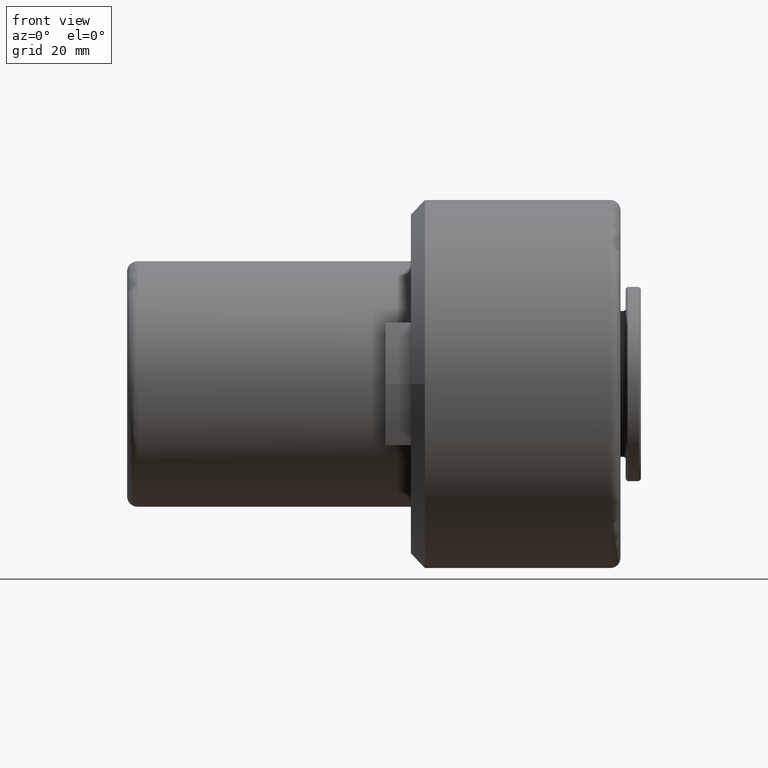
[diagram: clean part render]
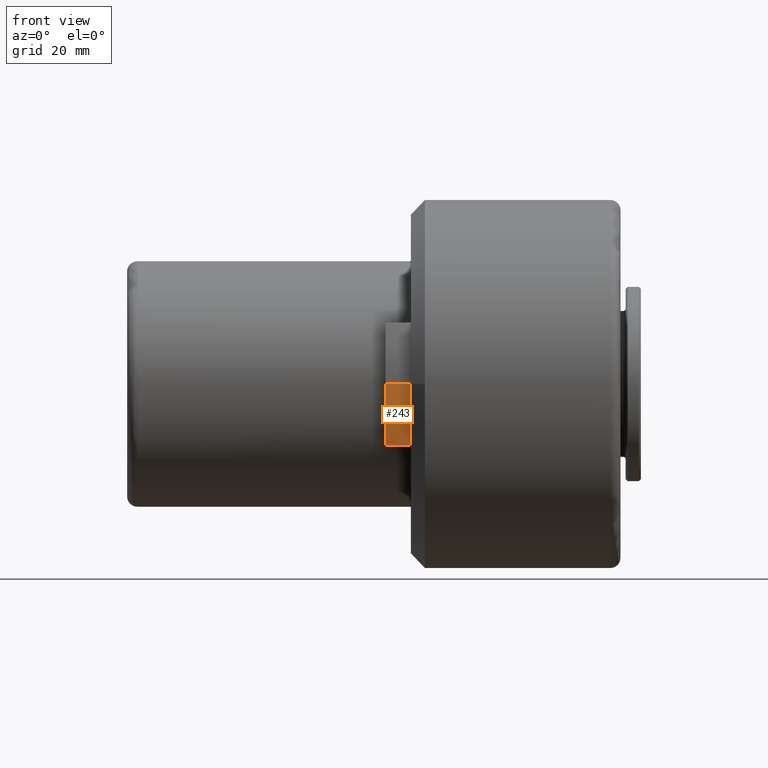
[diagram: same view with one face highlighted and labeled with its STEP entity id]
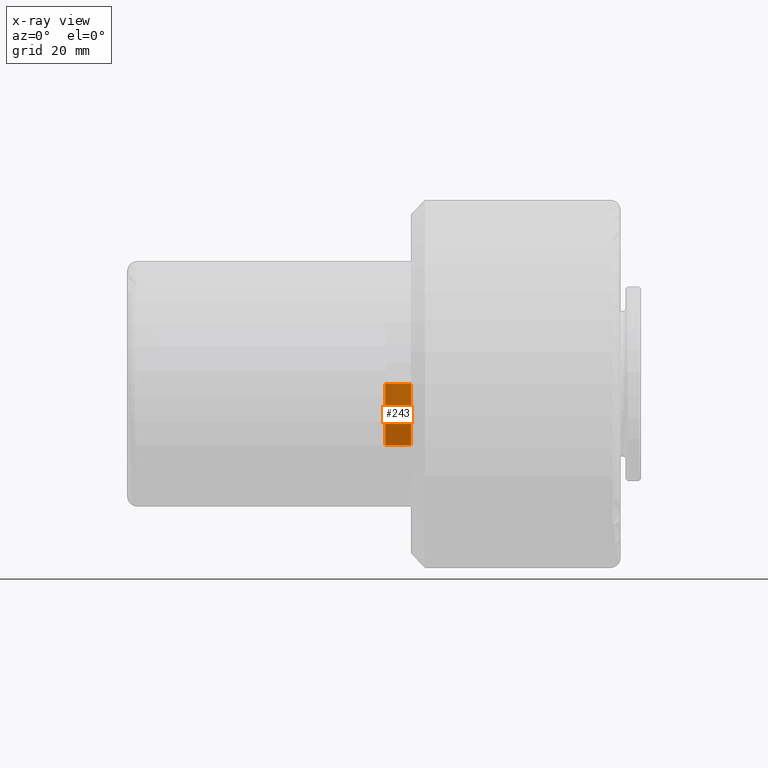
[diagram: x-ray of the same camera — body ghosted, the highlighted face saturated]
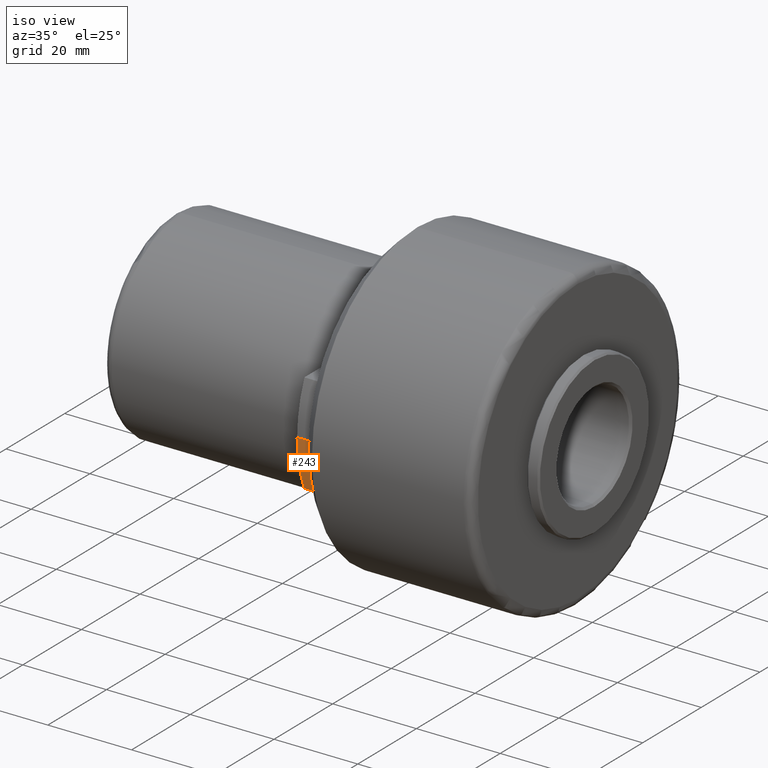
[diagram: same view with one face highlighted and labeled with its STEP entity id]
A machine part, front view. The second image highlights one B-rep face of the part: STEP entity #243.
The next image is the same camera in x-ray: the body ghosted, the highlighted face saturated — about 0% of this face is hidden behind the body in this view.
A second angle (iso view) of the same face is appended — the face is thin or edge-on in the first view.
In plain terms, the highlighted cylindrical surface (partial cylindrical patch) has radius 30 mm, axis along (-1, -0, -0).
Its self-contained STEP definition (entity closure, byte-faithful):
#19 = VERTEX_POINT ( 'NONE', #1252 ) ;
#44 = EDGE_CURVE ( 'NONE', #19, #1168, #332, .T. ) ;
#45 = VECTOR ( 'NONE', #1349, 1000.000000000000000 ) ;
#106 = VECTOR ( 'NONE', #573, 1000.000000000000000 ) ;
#230 = EDGE_LOOP ( 'NONE', ( #855, #1228, #1044, #259 ) ) ;
#240 = CYLINDRICAL_SURFACE ( 'NONE', #1056, 30.00000000000000000 ) ;
#243 = ADVANCED_FACE ( 'NONE', ( #273 ), #240, .T. ) ;
#259 = ORIENTED_EDGE ( 'NONE', *, *, #328, .T. ) ;
#273 = FACE_OUTER_BOUND ( 'NONE', #230, .T. ) ;
#313 = EDGE_CURVE ( 'NONE', #1168, #638, #1276, .T. ) ;
#328 = EDGE_CURVE ( 'NONE', #638, #753, #1235, .T. ) ;
#332 = LINE ( 'NONE', #1200, #45 ) ;
#337 = DIRECTION ( 'NONE',  ( -1.000000000000000000, -1.156482317317871700E-016, -0.0000000000000000000 ) ) ;
#391 = DIRECTION ( 'NONE',  ( -1.000000000000000000, -1.156482317317871700E-016, -0.0000000000000000000 ) ) ;
#471 = CARTESIAN_POINT ( 'NONE',  ( 50.50000000000000700, -30.00000000000000000, 0.0000000000000000000 ) ) ;
#480 = CIRCLE ( 'NONE', #1164, 30.00000000000000000 ) ;
#540 = CARTESIAN_POINT ( 'NONE',  ( 50.50000000000000000, -27.49545416986751800, -12.00000000000000000 ) ) ;
#573 = DIRECTION ( 'NONE',  ( 1.000000000000000000, 0.0000000000000000000, 0.0000000000000000000 ) ) ;
#638 = VERTEX_POINT ( 'NONE', #1142 ) ;
#702 = CARTESIAN_POINT ( 'NONE',  ( 50.50000000000000000, -5.782411586589359600E-016, 0.0000000000000000000 ) ) ;
#753 = VERTEX_POINT ( 'NONE', #976 ) ;
#822 = DIRECTION ( 'NONE',  ( 2.312964634635743000E-016, -1.000000000000000000, 0.0000000000000000000 ) ) ;
#846 = CARTESIAN_POINT ( 'NONE',  ( 55.50000000000000000, 0.0000000000000000000, 0.0000000000000000000 ) ) ;
#855 = ORIENTED_EDGE ( 'NONE', *, *, #1024, .T. ) ;
#923 = CARTESIAN_POINT ( 'NONE',  ( 55.50000000000000000, -3.677383230559753800E-031, 0.0000000000000000000 ) ) ;
#932 = DIRECTION ( 'NONE',  ( 1.000000000000000000, 1.156482317317871700E-016, 0.0000000000000000000 ) ) ;
#976 = CARTESIAN_POINT ( 'NONE',  ( 55.50000000000000700, -27.49545417167629000, -11.99999999570380800 ) ) ;
#1024 = EDGE_CURVE ( 'NONE', #753, #19, #480, .T. ) ;
#1044 = ORIENTED_EDGE ( 'NONE', *, *, #313, .T. ) ;
#1056 = AXIS2_PLACEMENT_3D ( 'NONE', #846, #391, #1153 ) ;
#1142 = CARTESIAN_POINT ( 'NONE',  ( 50.50000000000000000, -27.49545416980128100, -12.00000000000000000 ) ) ;
#1153 = DIRECTION ( 'NONE',  ( 2.312964634635743000E-016, -1.000000000000000000, 0.0000000000000000000 ) ) ;
#1164 = AXIS2_PLACEMENT_3D ( 'NONE', #923, #337, #1338 ) ;
#1168 = VERTEX_POINT ( 'NONE', #471 ) ;
#1180 = AXIS2_PLACEMENT_3D ( 'NONE', #702, #932, #822 ) ;
#1200 = CARTESIAN_POINT ( 'NONE',  ( 55.50000000000000700, -30.00000000000000000, 0.0000000000000000000 ) ) ;
#1228 = ORIENTED_EDGE ( 'NONE', *, *, #44, .T. ) ;
#1235 = LINE ( 'NONE', #540, #106 ) ;
#1252 = CARTESIAN_POINT ( 'NONE',  ( 55.50000000000000700, -30.00000000000000000, 0.0000000000000000000 ) ) ;
#1276 = CIRCLE ( 'NONE', #1180, 30.00000000000000000 ) ;
#1338 = DIRECTION ( 'NONE',  ( 2.312964634635743000E-016, -1.000000000000000000, 0.0000000000000000000 ) ) ;
#1349 = DIRECTION ( 'NONE',  ( -1.000000000000000000, -1.156482317317871700E-016, -0.0000000000000000000 ) ) ;